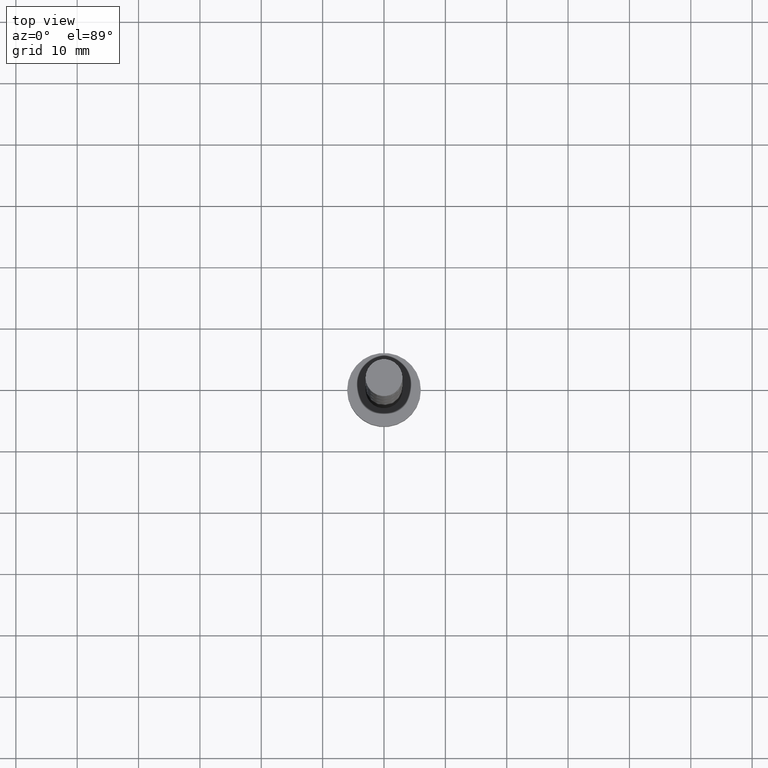
[diagram: clean part render]
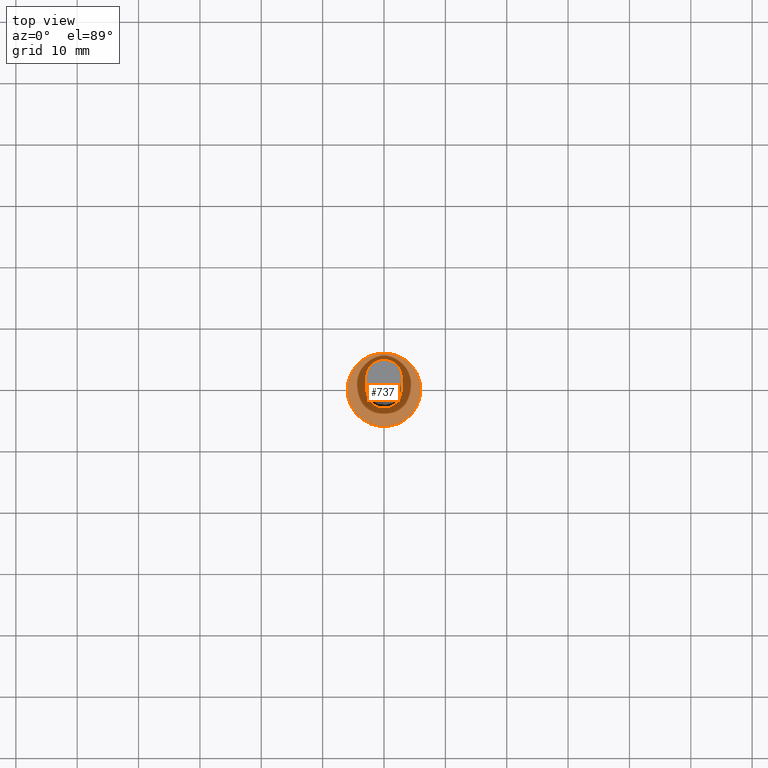
[diagram: same view with one face highlighted and labeled with its STEP entity id]
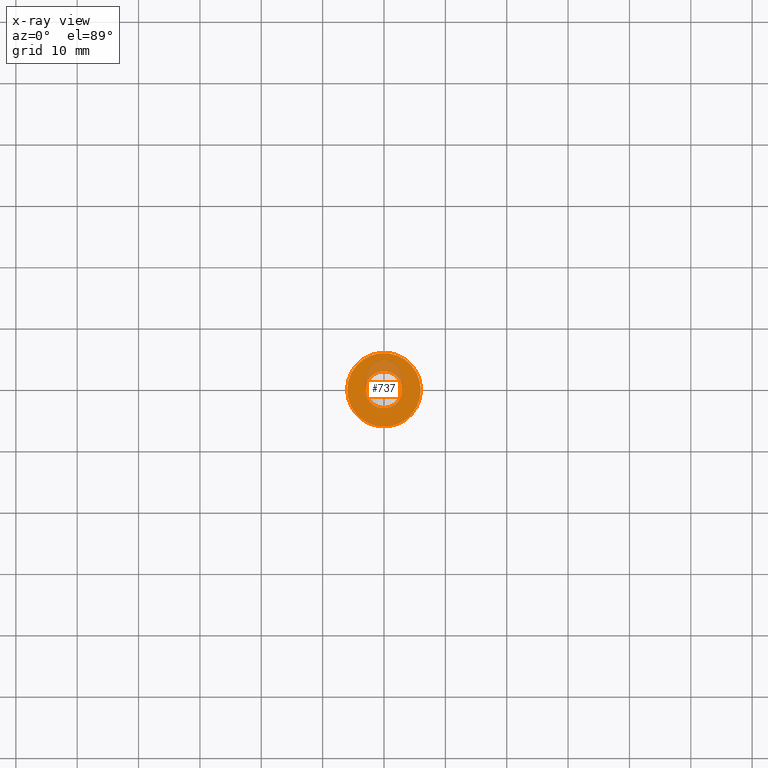
[diagram: x-ray of the same camera — body ghosted, the highlighted face saturated]
A machine part, top view. The second image highlights one B-rep face of the part: STEP entity #737.
The next image is the same camera in x-ray: the body ghosted, the highlighted face saturated — about 14% of this face is hidden behind the body in this view.
In plain terms, the highlighted planar face has unit normal (0, 0, 1).
Its self-contained STEP definition (entity closure, byte-faithful):
#9 = AXIS2_PLACEMENT_3D ( 'NONE', #972, #1476, #186 ) ;
#37 = CARTESIAN_POINT ( 'NONE',  ( -6.000000000000000888, 0.000000000000000000, 5.000000000000000000 ) ) ;
#58 = DIRECTION ( 'NONE',  ( 1.000000000000000000, 0.000000000000000000, 0.000000000000000000 ) ) ;
#133 = CARTESIAN_POINT ( 'NONE',  ( 0.000000000000000000, 0.000000000000000000, 5.000000000000000000 ) ) ;
#179 = ORIENTED_EDGE ( 'NONE', *, *, #916, .F. ) ;
#186 = DIRECTION ( 'NONE',  ( 1.000000000000000000, 0.000000000000000000, 0.000000000000000000 ) ) ;
#189 = VERTEX_POINT ( 'NONE', #932 ) ;
#199 = CARTESIAN_POINT ( 'NONE',  ( -3.000000000000000444, 0.000000000000000000, 5.000000000000000000 ) ) ;
#299 = AXIS2_PLACEMENT_3D ( 'NONE', #913, #402, #1271 ) ;
#338 = ORIENTED_EDGE ( 'NONE', *, *, #361, .F. ) ;
#361 = EDGE_CURVE ( 'NONE', #189, #430, #744, .T. ) ;
#373 = CIRCLE ( 'NONE', #1115, 3.000000000000000444 ) ;
#402 = DIRECTION ( 'NONE',  ( 0.000000000000000000, 0.000000000000000000, 1.000000000000000000 ) ) ;
#403 = ORIENTED_EDGE ( 'NONE', *, *, #1212, .T. ) ;
#430 = VERTEX_POINT ( 'NONE', #199 ) ;
#438 = DIRECTION ( 'NONE',  ( 1.000000000000000000, 0.000000000000000000, 0.000000000000000000 ) ) ;
#518 = CIRCLE ( 'NONE', #844, 6.000000000000000888 ) ;
#524 = ORIENTED_EDGE ( 'NONE', *, *, #1040, .T. ) ;
#542 = FACE_BOUND ( 'NONE', #1524, .T. ) ;
#555 = CARTESIAN_POINT ( 'NONE',  ( 0.000000000000000000, 0.000000000000000000, 5.000000000000000000 ) ) ;
#603 = CIRCLE ( 'NONE', #9, 6.000000000000000888 ) ;
#664 = DIRECTION ( 'NONE',  ( 0.000000000000000000, 0.000000000000000000, 1.000000000000000000 ) ) ;
#737 = ADVANCED_FACE ( 'NONE', ( #542, #1658 ), #1572, .T. ) ;
#744 = CIRCLE ( 'NONE', #1146, 3.000000000000000444 ) ;
#791 = DIRECTION ( 'NONE',  ( 1.000000000000000000, 0.000000000000000000, 0.000000000000000000 ) ) ;
#844 = AXIS2_PLACEMENT_3D ( 'NONE', #555, #664, #791 ) ;
#850 = DIRECTION ( 'NONE',  ( 0.000000000000000000, 0.000000000000000000, 1.000000000000000000 ) ) ;
#913 = CARTESIAN_POINT ( 'NONE',  ( 0.000000000000000000, 0.000000000000000000, 5.000000000000000000 ) ) ;
#916 = EDGE_CURVE ( 'NONE', #430, #189, #373, .T. ) ;
#932 = CARTESIAN_POINT ( 'NONE',  ( 3.000000000000000444, 3.673940397442060361E-16, 5.000000000000000000 ) ) ;
#955 = CARTESIAN_POINT ( 'NONE',  ( 0.000000000000000000, 0.000000000000000000, 5.000000000000000000 ) ) ;
#957 = VERTEX_POINT ( 'NONE', #1196 ) ;
#972 = CARTESIAN_POINT ( 'NONE',  ( 0.000000000000000000, 0.000000000000000000, 5.000000000000000000 ) ) ;
#1040 = EDGE_CURVE ( 'NONE', #957, #1062, #603, .T. ) ;
#1062 = VERTEX_POINT ( 'NONE', #37 ) ;
#1096 = EDGE_LOOP ( 'NONE', ( #403, #524 ) ) ;
#1115 = AXIS2_PLACEMENT_3D ( 'NONE', #955, #1468, #58 ) ;
#1146 = AXIS2_PLACEMENT_3D ( 'NONE', #133, #850, #438 ) ;
#1196 = CARTESIAN_POINT ( 'NONE',  ( 6.000000000000000888, 7.347880794884120722E-16, 5.000000000000000000 ) ) ;
#1212 = EDGE_CURVE ( 'NONE', #1062, #957, #518, .T. ) ;
#1271 = DIRECTION ( 'NONE',  ( 1.000000000000000000, 0.000000000000000000, -0.000000000000000000 ) ) ;
#1468 = DIRECTION ( 'NONE',  ( 0.000000000000000000, 0.000000000000000000, 1.000000000000000000 ) ) ;
#1476 = DIRECTION ( 'NONE',  ( 0.000000000000000000, 0.000000000000000000, 1.000000000000000000 ) ) ;
#1524 = EDGE_LOOP ( 'NONE', ( #179, #338 ) ) ;
#1572 = PLANE ( 'NONE',  #299 ) ;
#1658 = FACE_OUTER_BOUND ( 'NONE', #1096, .T. ) ;